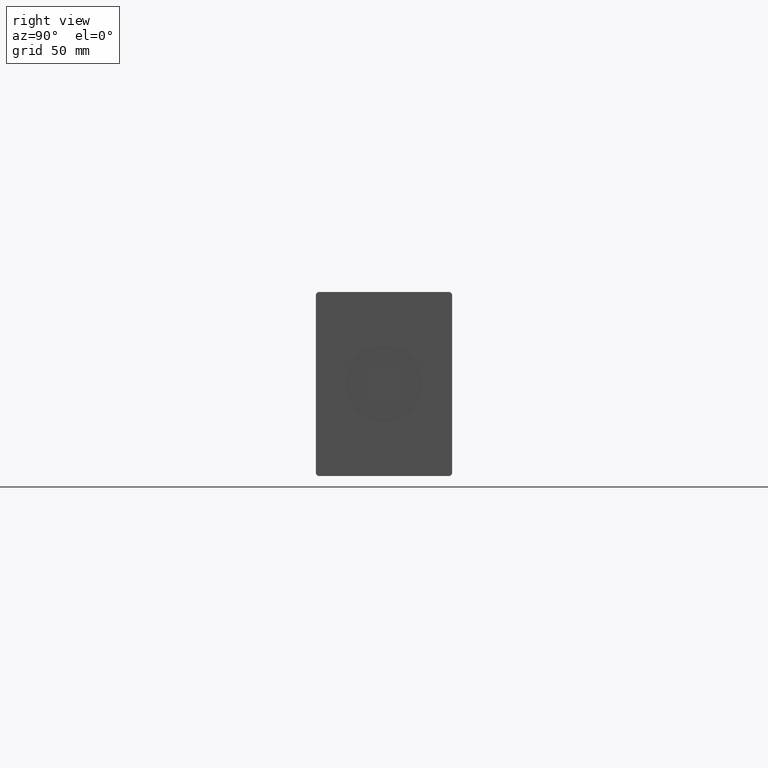
[diagram: clean part render]
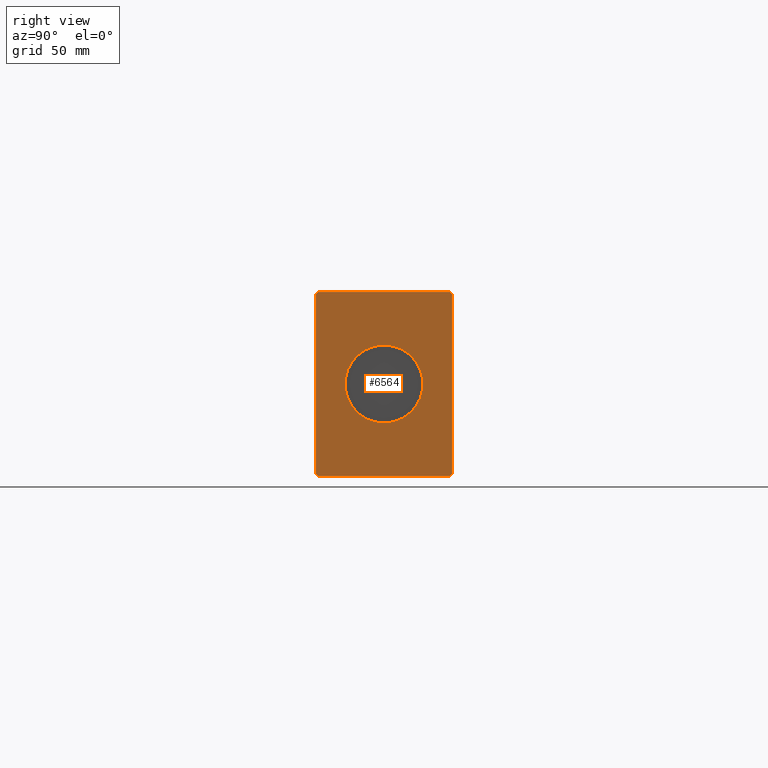
[diagram: same view with one face highlighted and labeled with its STEP entity id]
A machine part, right view. The second image highlights one B-rep face of the part: STEP entity #6564.
In plain terms, the highlighted planar face has unit normal (1, 0, 0).
Its self-contained STEP definition (entity closure, byte-faithful):
#247 = DIRECTION ( 'NONE',  ( 0.000000000000000000, 0.000000000000000000, -1.000000000000000000 ) ) ;
#372 = DIRECTION ( 'NONE',  ( 0.000000000000000000, 0.7071067811865451302, -0.7071067811865500152 ) ) ;
#608 = CARTESIAN_POINT ( 'NONE',  ( 321.0000000000000000, -31.50000000000000000, 41.49999999999999289 ) ) ;
#2482 = VECTOR ( 'NONE', #21477, 1000.000000000000114 ) ;
#2650 = CARTESIAN_POINT ( 'NONE',  ( 321.0000000000000000, 31.50000000000001421, 41.49999999999999289 ) ) ;
#2815 = ORIENTED_EDGE ( 'NONE', *, *, #22446, .T. ) ;
#3006 = CARTESIAN_POINT ( 'NONE',  ( 321.0000000000000000, -31.50000000000000000, -41.50000000000000711 ) ) ;
#3228 = VERTEX_POINT ( 'NONE', #34116 ) ;
#3451 = CARTESIAN_POINT ( 'NONE',  ( 321.0000000000000000, 0.000000000000000000, 0.000000000000000000 ) ) ;
#3662 = PLANE ( 'NONE',  #28647 ) ;
#3812 = LINE ( 'NONE', #608, #12024 ) ;
#4607 = CIRCLE ( 'NONE', #14108, 18.00000000000000000 ) ;
#5727 = VERTEX_POINT ( 'NONE', #3006 ) ;
#6433 = DIRECTION ( 'NONE',  ( 0.000000000000000000, 0.000000000000000000, 1.000000000000000000 ) ) ;
#6564 = ADVANCED_FACE ( 'NONE', ( #35789, #32600 ), #3662, .T. ) ;
#6939 = ORIENTED_EDGE ( 'NONE', *, *, #30714, .T. ) ;
#7752 = CARTESIAN_POINT ( 'NONE',  ( 321.0000000000000000, -30.50000000000000355, 42.49999999999999289 ) ) ;
#8722 = VERTEX_POINT ( 'NONE', #27897 ) ;
#9075 = ORIENTED_EDGE ( 'NONE', *, *, #26465, .F. ) ;
#9238 = LINE ( 'NONE', #9451, #16530 ) ;
#9451 = CARTESIAN_POINT ( 'NONE',  ( 321.0000000000000000, 30.50000000000001776, -42.50000000000000711 ) ) ;
#9824 = VERTEX_POINT ( 'NONE', #29375 ) ;
#10053 = DIRECTION ( 'NONE',  ( 0.000000000000000000, -1.000000000000000000, 0.000000000000000000 ) ) ;
#10662 = ORIENTED_EDGE ( 'NONE', *, *, #24240, .T. ) ;
#10938 = LINE ( 'NONE', #7752, #20221 ) ;
#11203 = EDGE_CURVE ( 'NONE', #15187, #22636, #9238, .T. ) ;
#11552 = ORIENTED_EDGE ( 'NONE', *, *, #35570, .T. ) ;
#12024 = VECTOR ( 'NONE', #15919, 1000.000000000000000 ) ;
#12269 = EDGE_CURVE ( 'NONE', #22636, #18028, #25799, .T. ) ;
#12447 = DIRECTION ( 'NONE',  ( 1.000000000000000000, 0.000000000000000000, 0.000000000000000000 ) ) ;
#13437 = CIRCLE ( 'NONE', #37910, 18.00000000000000000 ) ;
#14108 = AXIS2_PLACEMENT_3D ( 'NONE', #23941, #40112, #40740 ) ;
#14119 = VECTOR ( 'NONE', #372, 1000.000000000000114 ) ;
#15032 = EDGE_LOOP ( 'NONE', ( #31539, #9075 ) ) ;
#15187 = VERTEX_POINT ( 'NONE', #22651 ) ;
#15214 = VERTEX_POINT ( 'NONE', #35629 ) ;
#15919 = DIRECTION ( 'NONE',  ( 0.000000000000000000, 0.000000000000000000, -1.000000000000000000 ) ) ;
#16530 = VECTOR ( 'NONE', #29466, 999.9999999999998863 ) ;
#18028 = VERTEX_POINT ( 'NONE', #2650 ) ;
#18071 = LINE ( 'NONE', #34047, #2482 ) ;
#18073 = CARTESIAN_POINT ( 'NONE',  ( 321.0000000000000000, 31.50000000000001421, -41.50000000000000711 ) ) ;
#18408 = CARTESIAN_POINT ( 'NONE',  ( 321.0000000000000000, 0.000000000000000000, 0.000000000000000000 ) ) ;
#20028 = DIRECTION ( 'NONE',  ( 0.000000000000000000, 1.000000000000000000, 0.000000000000000000 ) ) ;
#20031 = DIRECTION ( 'NONE',  ( 1.000000000000000000, 0.000000000000000000, 0.000000000000000000 ) ) ;
#20221 = VECTOR ( 'NONE', #20725, 999.9999999999998863 ) ;
#20469 = ORIENTED_EDGE ( 'NONE', *, *, #31388, .T. ) ;
#20725 = DIRECTION ( 'NONE',  ( 0.000000000000000000, -0.7071067811865462405, -0.7071067811865489050 ) ) ;
#21477 = DIRECTION ( 'NONE',  ( 0.000000000000000000, -0.7071067811865474617, 0.7071067811865474617 ) ) ;
#22030 = DIRECTION ( 'NONE',  ( 0.000000000000000000, 0.000000000000000000, -1.000000000000000000 ) ) ;
#22446 = EDGE_CURVE ( 'NONE', #8722, #15187, #23031, .T. ) ;
#22636 = VERTEX_POINT ( 'NONE', #18073 ) ;
#22651 = CARTESIAN_POINT ( 'NONE',  ( 321.0000000000000000, 30.50000000000001776, -42.50000000000000711 ) ) ;
#23031 = LINE ( 'NONE', #32375, #34317 ) ;
#23530 = ORIENTED_EDGE ( 'NONE', *, *, #11203, .T. ) ;
#23662 = CARTESIAN_POINT ( 'NONE',  ( 321.0000000000000000, 30.50000000000001421, 42.49999999999999289 ) ) ;
#23941 = CARTESIAN_POINT ( 'NONE',  ( 321.0000000000000000, 0.000000000000000000, 0.000000000000000000 ) ) ;
#24240 = EDGE_CURVE ( 'NONE', #34825, #15214, #36217, .T. ) ;
#25799 = LINE ( 'NONE', #26010, #41021 ) ;
#26010 = CARTESIAN_POINT ( 'NONE',  ( 321.0000000000000000, 31.50000000000001421, -41.50000000000000711 ) ) ;
#26378 = CARTESIAN_POINT ( 'NONE',  ( 321.0000000000000000, 30.50000000000001421, 42.49999999999999289 ) ) ;
#26465 = EDGE_CURVE ( 'NONE', #3228, #29145, #4607, .T. ) ;
#27660 = VECTOR ( 'NONE', #10053, 1000.000000000000000 ) ;
#27897 = CARTESIAN_POINT ( 'NONE',  ( 321.0000000000000000, -30.50000000000000711, -42.50000000000000711 ) ) ;
#28181 = CARTESIAN_POINT ( 'NONE',  ( 321.0000000000000000, 0.000000000000000000, -18.00000000000000000 ) ) ;
#28647 = AXIS2_PLACEMENT_3D ( 'NONE', #3451, #20031, #247 ) ;
#29145 = VERTEX_POINT ( 'NONE', #28181 ) ;
#29375 = CARTESIAN_POINT ( 'NONE',  ( 321.0000000000000000, -31.50000000000000000, 41.49999999999999289 ) ) ;
#29466 = DIRECTION ( 'NONE',  ( 0.000000000000000000, 0.7071067811865462405, 0.7071067811865489050 ) ) ;
#30714 = EDGE_CURVE ( 'NONE', #9824, #5727, #3812, .T. ) ;
#31388 = EDGE_CURVE ( 'NONE', #15214, #9824, #10938, .T. ) ;
#31539 = ORIENTED_EDGE ( 'NONE', *, *, #37595, .F. ) ;
#32375 = CARTESIAN_POINT ( 'NONE',  ( 321.0000000000000000, -30.50000000000000711, -42.50000000000000711 ) ) ;
#32600 = FACE_OUTER_BOUND ( 'NONE', #40293, .T. ) ;
#32931 = LINE ( 'NONE', #36333, #14119 ) ;
#34047 = CARTESIAN_POINT ( 'NONE',  ( 321.0000000000000000, 31.50000000000001421, 41.49999999999999289 ) ) ;
#34116 = CARTESIAN_POINT ( 'NONE',  ( 321.0000000000000000, 2.204364238465235428E-15, 18.00000000000000000 ) ) ;
#34317 = VECTOR ( 'NONE', #20028, 1000.000000000000000 ) ;
#34364 = ORIENTED_EDGE ( 'NONE', *, *, #12269, .T. ) ;
#34825 = VERTEX_POINT ( 'NONE', #26378 ) ;
#35570 = EDGE_CURVE ( 'NONE', #18028, #34825, #18071, .T. ) ;
#35629 = CARTESIAN_POINT ( 'NONE',  ( 321.0000000000000000, -30.50000000000000355, 42.49999999999999289 ) ) ;
#35789 = FACE_BOUND ( 'NONE', #15032, .T. ) ;
#36217 = LINE ( 'NONE', #23662, #27660 ) ;
#36326 = ORIENTED_EDGE ( 'NONE', *, *, #37494, .T. ) ;
#36333 = CARTESIAN_POINT ( 'NONE',  ( 321.0000000000000000, -31.50000000000000000, -41.50000000000000711 ) ) ;
#37494 = EDGE_CURVE ( 'NONE', #5727, #8722, #32931, .T. ) ;
#37595 = EDGE_CURVE ( 'NONE', #29145, #3228, #13437, .T. ) ;
#37910 = AXIS2_PLACEMENT_3D ( 'NONE', #18408, #12447, #22030 ) ;
#40112 = DIRECTION ( 'NONE',  ( 1.000000000000000000, 0.000000000000000000, 0.000000000000000000 ) ) ;
#40293 = EDGE_LOOP ( 'NONE', ( #11552, #10662, #20469, #6939, #36326, #2815, #23530, #34364 ) ) ;
#40740 = DIRECTION ( 'NONE',  ( 0.000000000000000000, 0.000000000000000000, -1.000000000000000000 ) ) ;
#41021 = VECTOR ( 'NONE', #6433, 1000.000000000000000 ) ;